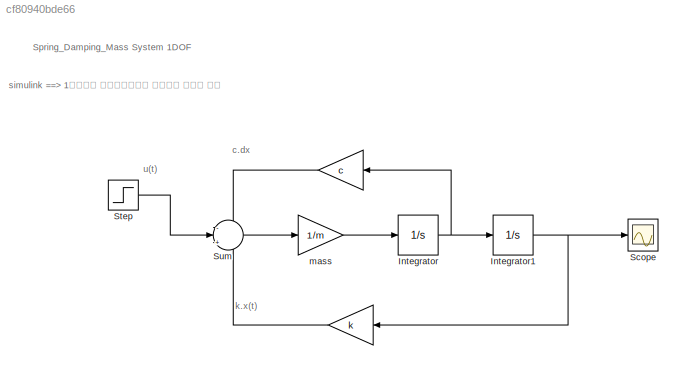
MODEL slx_cf80940bde66
KIND model
BLOCK [Gain]  
  Gain = k
  OutDataTypeStr = Inherit: Inherit via internal rule
  ParamDataTypeStr = Inherit: Inherit via internal rule
  SaturateOnIntegerOverflow = off
BLOCK [Integrator] Integrator
  Ports = [1, 1]
BLOCK [Integrator] Integrator1
  Ports = [1, 1]
BLOCK [Scope] Scope
  DataFormat = StructureWithTime
  Floating = off
  NumInputPorts = 1
  Ports = [1]
  SampleTime = 0
  ShowLegends = off
BLOCK [Step] Step
  SampleTime = 0
  Time = 0
BLOCK [Sum] Sum
  IconShape = round
  InputSameDT = off
  Inputs = -|+|-
  OutDataTypeStr = Inherit: Inherit via internal rule
  Ports = [3, 1]
  SaturateOnIntegerOverflow = off
BLOCK [Gain] mass 
  Gain = 1/m
  OutDataTypeStr = Inherit: Inherit via internal rule
  ParamDataTypeStr = Inherit: Inherit via internal rule
  SaturateOnIntegerOverflow = off
ANNOTATION (root): Spring_Damping_Mass System 1DOF
ANNOTATION (root): c.dx
ANNOTATION (root): k.x(t)
ANNOTATION (root): simulink ==> 1자유도계 질량댐핑스프링 시스템을 나타낸 블록
ANNOTATION (root): u(t)
NET  :1 -> Sum:1, Sum:3
NET Integrator1:1 ->  :1, Scope:1
NET Integrator:1 ->  :1, Integrator1:1
LINE Step:1 -> Sum:2
LINE Sum:1 -> mass :1
LINE mass :1 -> Integrator:1
note: NET lines group one-source signal fan-out (src -> all destinations, sorted); 1:1 wires keep LINE
